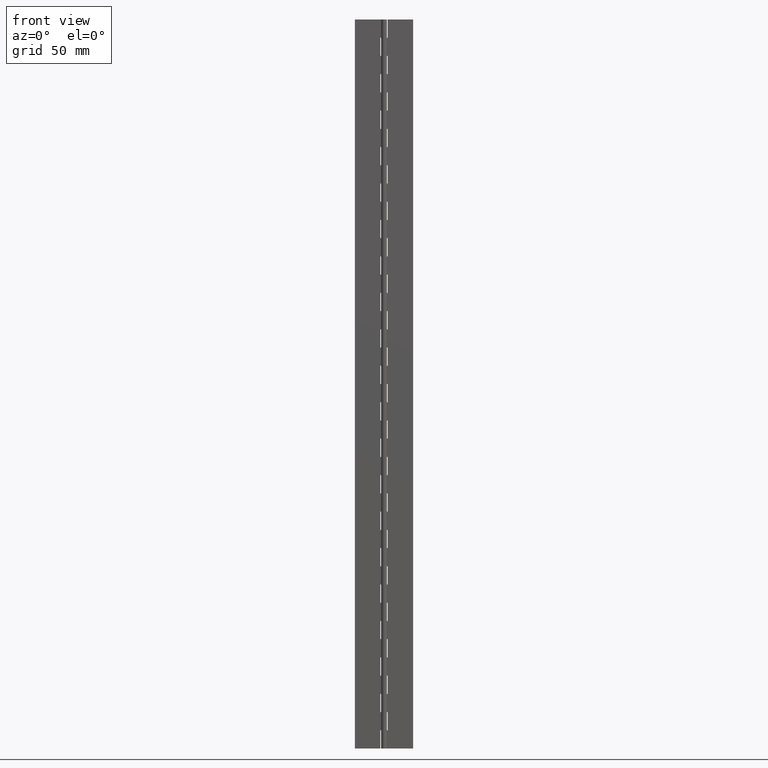
[diagram: clean part render]
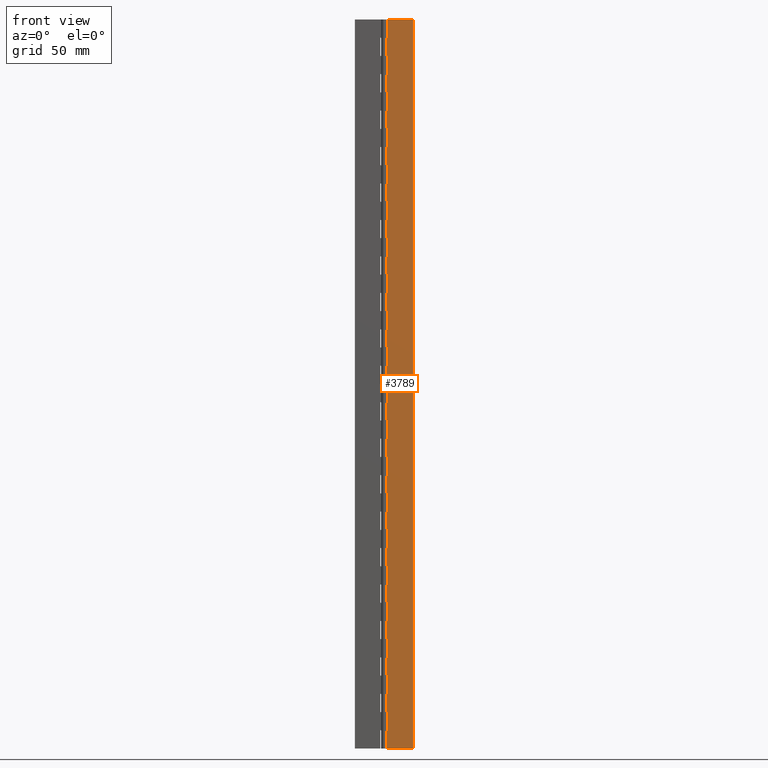
[diagram: same view with one face highlighted and labeled with its STEP entity id]
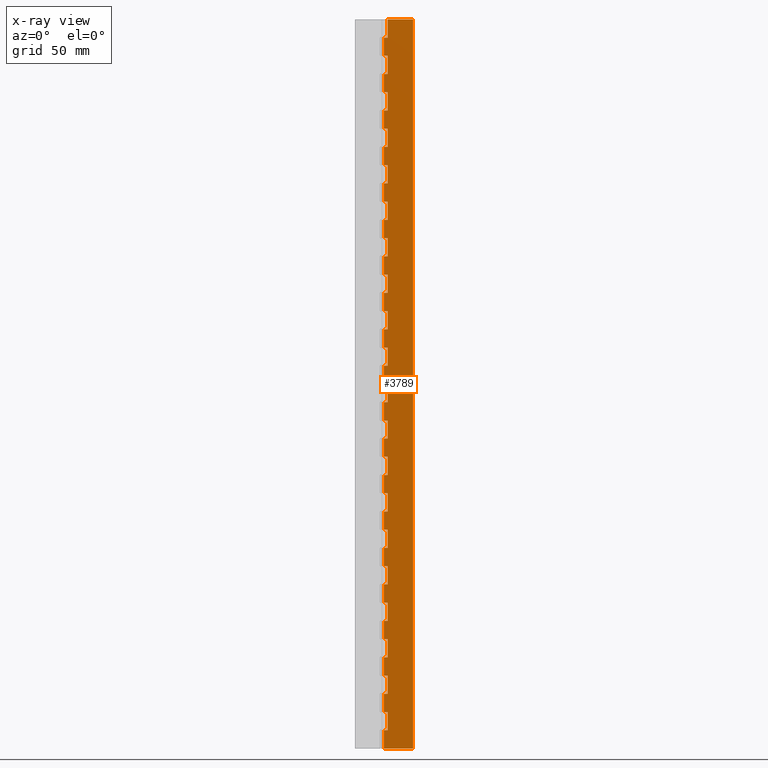
[diagram: x-ray of the same camera — body ghosted, the highlighted face saturated]
A machine part, front view. The second image highlights one B-rep face of the part: STEP entity #3789.
The next image is the same camera in x-ray: the body ghosted, the highlighted face saturated — about 0% of this face is hidden behind the body in this view.
In plain terms, the highlighted face is a freeform B-spline surface patch.
Its self-contained STEP definition (entity closure, byte-faithful):
#79=CARTESIAN_POINT('',(-1.836937E-016,1.0,487.500000000000000));
#80=VERTEX_POINT('',#79);
#100=CARTESIAN_POINT('',(2.500000000000000,1.0,487.500000000000000));
#101=VERTEX_POINT('',#100);
#102=CARTESIAN_POINT('',(2.500000000000000,1.0,487.500000000000000));
#103=CARTESIAN_POINT('',(-1.836937E-016,1.0,487.500000000000000));
#104=QUASI_UNIFORM_CURVE('',1,(#102,#103),.UNSPECIFIED.,.F.,.U.);
#105=EDGE_CURVE('',#101,#80,#104,.T.);
#127=CARTESIAN_POINT('',(2.500000000000000,1.0,500.0));
#128=VERTEX_POINT('',#127);
#142=CARTESIAN_POINT('',(2.500000000000000,1.0,500.0));
#143=CARTESIAN_POINT('',(2.500000000000000,1.0,487.500000000000000));
#144=QUASI_UNIFORM_CURVE('',1,(#142,#143),.UNSPECIFIED.,.F.,.U.);
#145=EDGE_CURVE('',#128,#101,#144,.T.);
#185=CARTESIAN_POINT('',(-1.836910E-016,1.0,462.500000000000000));
#186=VERTEX_POINT('',#185);
#206=CARTESIAN_POINT('',(2.500000000000000,1.0,462.500000000000000));
#207=VERTEX_POINT('',#206);
#208=CARTESIAN_POINT('',(2.500000000000000,1.0,462.500000000000000));
#209=CARTESIAN_POINT('',(-1.836910E-016,1.0,462.500000000000000));
#210=QUASI_UNIFORM_CURVE('',1,(#208,#209),.UNSPECIFIED.,.F.,.U.);
#211=EDGE_CURVE('',#207,#186,#210,.T.);
#263=CARTESIAN_POINT('',(2.500000000000000,1.0,475.0));
#264=VERTEX_POINT('',#263);
#270=CARTESIAN_POINT('',(-1.836937E-016,1.0,475.0));
#271=VERTEX_POINT('',#270);
#272=CARTESIAN_POINT('',(-1.836937E-016,1.0,475.0));
#273=CARTESIAN_POINT('',(2.500000000000000,1.0,475.0));
#274=QUASI_UNIFORM_CURVE('',1,(#272,#273),.UNSPECIFIED.,.F.,.U.);
#275=EDGE_CURVE('',#271,#264,#274,.T.);
#318=CARTESIAN_POINT('',(2.500000000000000,1.0,475.0));
#319=CARTESIAN_POINT('',(2.500000000000000,1.0,462.500000000000000));
#320=QUASI_UNIFORM_CURVE('',1,(#318,#319),.UNSPECIFIED.,.F.,.U.);
#321=EDGE_CURVE('',#264,#207,#320,.T.);
#361=CARTESIAN_POINT('',(-1.836910E-016,1.0,437.500000000000000));
#362=VERTEX_POINT('',#361);
#382=CARTESIAN_POINT('',(2.500000000000000,1.0,437.500000000000000));
#383=VERTEX_POINT('',#382);
#384=CARTESIAN_POINT('',(2.500000000000000,1.0,437.500000000000000));
#385=CARTESIAN_POINT('',(-1.836910E-016,1.0,437.500000000000000));
#386=QUASI_UNIFORM_CURVE('',1,(#384,#385),.UNSPECIFIED.,.F.,.U.);
#387=EDGE_CURVE('',#383,#362,#386,.T.);
#439=CARTESIAN_POINT('',(2.500000000000000,1.0,450.0));
#440=VERTEX_POINT('',#439);
#446=CARTESIAN_POINT('',(-1.836937E-016,1.0,450.0));
#447=VERTEX_POINT('',#446);
#448=CARTESIAN_POINT('',(-1.836937E-016,1.0,450.0));
#449=CARTESIAN_POINT('',(2.500000000000000,1.0,450.0));
#450=QUASI_UNIFORM_CURVE('',1,(#448,#449),.UNSPECIFIED.,.F.,.U.);
#451=EDGE_CURVE('',#447,#440,#450,.T.);
#494=CARTESIAN_POINT('',(2.500000000000000,1.0,450.0));
#495=CARTESIAN_POINT('',(2.500000000000000,1.0,437.500000000000000));
#496=QUASI_UNIFORM_CURVE('',1,(#494,#495),.UNSPECIFIED.,.F.,.U.);
#497=EDGE_CURVE('',#440,#383,#496,.T.);
#537=CARTESIAN_POINT('',(-1.836910E-016,1.0,412.500000000000000));
#538=VERTEX_POINT('',#537);
#558=CARTESIAN_POINT('',(2.500000000000000,1.0,412.500000000000000));
#559=VERTEX_POINT('',#558);
#560=CARTESIAN_POINT('',(2.500000000000000,1.0,412.500000000000000));
#561=CARTESIAN_POINT('',(-1.836910E-016,1.0,412.500000000000000));
#562=QUASI_UNIFORM_CURVE('',1,(#560,#561),.UNSPECIFIED.,.F.,.U.);
#563=EDGE_CURVE('',#559,#538,#562,.T.);
#615=CARTESIAN_POINT('',(2.500000000000000,1.0,425.0));
#616=VERTEX_POINT('',#615);
#622=CARTESIAN_POINT('',(-1.836937E-016,1.0,425.0));
#623=VERTEX_POINT('',#622);
#624=CARTESIAN_POINT('',(-1.836937E-016,1.0,425.0));
#625=CARTESIAN_POINT('',(2.500000000000000,1.0,425.0));
#626=QUASI_UNIFORM_CURVE('',1,(#624,#625),.UNSPECIFIED.,.F.,.U.);
#627=EDGE_CURVE('',#623,#616,#626,.T.);
#670=CARTESIAN_POINT('',(2.500000000000000,1.0,425.0));
#671=CARTESIAN_POINT('',(2.500000000000000,1.0,412.500000000000000));
#672=QUASI_UNIFORM_CURVE('',1,(#670,#671),.UNSPECIFIED.,.F.,.U.);
#673=EDGE_CURVE('',#616,#559,#672,.T.);
#713=CARTESIAN_POINT('',(-1.836910E-016,1.0,387.500000000000000));
#714=VERTEX_POINT('',#713);
#734=CARTESIAN_POINT('',(2.500000000000000,1.0,387.500000000000000));
#735=VERTEX_POINT('',#734);
#736=CARTESIAN_POINT('',(2.500000000000000,1.0,387.500000000000000));
#737=CARTESIAN_POINT('',(-1.836910E-016,1.0,387.500000000000000));
#738=QUASI_UNIFORM_CURVE('',1,(#736,#737),.UNSPECIFIED.,.F.,.U.);
#739=EDGE_CURVE('',#735,#714,#738,.T.);
#791=CARTESIAN_POINT('',(2.500000000000000,1.0,400.0));
#792=VERTEX_POINT('',#791);
#798=CARTESIAN_POINT('',(-1.836937E-016,1.0,400.0));
#799=VERTEX_POINT('',#798);
#800=CARTESIAN_POINT('',(-1.836937E-016,1.0,400.0));
#801=CARTESIAN_POINT('',(2.500000000000000,1.0,400.0));
#802=QUASI_UNIFORM_CURVE('',1,(#800,#801),.UNSPECIFIED.,.F.,.U.);
#803=EDGE_CURVE('',#799,#792,#802,.T.);
#846=CARTESIAN_POINT('',(2.500000000000000,1.0,400.0));
#847=CARTESIAN_POINT('',(2.500000000000000,1.0,387.500000000000000));
#848=QUASI_UNIFORM_CURVE('',1,(#846,#847),.UNSPECIFIED.,.F.,.U.);
#849=EDGE_CURVE('',#792,#735,#848,.T.);
#889=CARTESIAN_POINT('',(-1.836910E-016,1.0,362.500000000000000));
#890=VERTEX_POINT('',#889);
#910=CARTESIAN_POINT('',(2.500000000000000,1.0,362.500000000000000));
#911=VERTEX_POINT('',#910);
#912=CARTESIAN_POINT('',(2.500000000000000,1.0,362.500000000000000));
#913=CARTESIAN_POINT('',(-1.836910E-016,1.0,362.500000000000000));
#914=QUASI_UNIFORM_CURVE('',1,(#912,#913),.UNSPECIFIED.,.F.,.U.);
#915=EDGE_CURVE('',#911,#890,#914,.T.);
#967=CARTESIAN_POINT('',(2.500000000000000,1.0,375.0));
#968=VERTEX_POINT('',#967);
#974=CARTESIAN_POINT('',(-1.836937E-016,1.0,375.0));
#975=VERTEX_POINT('',#974);
#976=CARTESIAN_POINT('',(-1.836937E-016,1.0,375.0));
#977=CARTESIAN_POINT('',(2.500000000000000,1.0,375.0));
#978=QUASI_UNIFORM_CURVE('',1,(#976,#977),.UNSPECIFIED.,.F.,.U.);
#979=EDGE_CURVE('',#975,#968,#978,.T.);
#1022=CARTESIAN_POINT('',(2.500000000000000,1.0,375.0));
#1023=CARTESIAN_POINT('',(2.500000000000000,1.0,362.500000000000000));
#1024=QUASI_UNIFORM_CURVE('',1,(#1022,#1023),.UNSPECIFIED.,.F.,.U.);
#1025=EDGE_CURVE('',#968,#911,#1024,.T.);
#1065=CARTESIAN_POINT('',(-1.836910E-016,1.0,337.500000000000000));
#1066=VERTEX_POINT('',#1065);
#1086=CARTESIAN_POINT('',(2.500000000000000,1.0,337.500000000000000));
#1087=VERTEX_POINT('',#1086);
#1088=CARTESIAN_POINT('',(2.500000000000000,1.0,337.500000000000000));
#1089=CARTESIAN_POINT('',(-1.836910E-016,1.0,337.500000000000000));
#1090=QUASI_UNIFORM_CURVE('',1,(#1088,#1089),.UNSPECIFIED.,.F.,.U.);
#1091=EDGE_CURVE('',#1087,#1066,#1090,.T.);
#1143=CARTESIAN_POINT('',(2.500000000000000,1.0,350.0));
#1144=VERTEX_POINT('',#1143);
#1150=CARTESIAN_POINT('',(-1.836937E-016,1.0,350.0));
#1151=VERTEX_POINT('',#1150);
#1152=CARTESIAN_POINT('',(-1.836937E-016,1.0,350.0));
#1153=CARTESIAN_POINT('',(2.500000000000000,1.0,350.0));
#1154=QUASI_UNIFORM_CURVE('',1,(#1152,#1153),.UNSPECIFIED.,.F.,.U.);
#1155=EDGE_CURVE('',#1151,#1144,#1154,.T.);
#1198=CARTESIAN_POINT('',(2.500000000000000,1.0,350.0));
#1199=CARTESIAN_POINT('',(2.500000000000000,1.0,337.500000000000000));
#1200=QUASI_UNIFORM_CURVE('',1,(#1198,#1199),.UNSPECIFIED.,.F.,.U.);
#1201=EDGE_CURVE('',#1144,#1087,#1200,.T.);
#1241=CARTESIAN_POINT('',(-1.836910E-016,1.0,312.500000000000000));
#1242=VERTEX_POINT('',#1241);
#1262=CARTESIAN_POINT('',(2.500000000000000,1.0,312.500000000000000));
#1263=VERTEX_POINT('',#1262);
#1264=CARTESIAN_POINT('',(2.500000000000000,1.0,312.500000000000000));
#1265=CARTESIAN_POINT('',(-1.836910E-016,1.0,312.500000000000000));
#1266=QUASI_UNIFORM_CURVE('',1,(#1264,#1265),.UNSPECIFIED.,.F.,.U.);
#1267=EDGE_CURVE('',#1263,#1242,#1266,.T.);
#1319=CARTESIAN_POINT('',(2.500000000000000,1.0,325.0));
#1320=VERTEX_POINT('',#1319);
#1326=CARTESIAN_POINT('',(-1.836937E-016,1.0,325.0));
#1327=VERTEX_POINT('',#1326);
#1328=CARTESIAN_POINT('',(-1.836937E-016,1.0,325.0));
#1329=CARTESIAN_POINT('',(2.500000000000000,1.0,325.0));
#1330=QUASI_UNIFORM_CURVE('',1,(#1328,#1329),.UNSPECIFIED.,.F.,.U.);
#1331=EDGE_CURVE('',#1327,#1320,#1330,.T.);
#1374=CARTESIAN_POINT('',(2.500000000000000,1.0,325.0));
#1375=CARTESIAN_POINT('',(2.500000000000000,1.0,312.500000000000000));
#1376=QUASI_UNIFORM_CURVE('',1,(#1374,#1375),.UNSPECIFIED.,.F.,.U.);
#1377=EDGE_CURVE('',#1320,#1263,#1376,.T.);
#1417=CARTESIAN_POINT('',(-1.836910E-016,1.0,287.500000000000000));
#1418=VERTEX_POINT('',#1417);
#1438=CARTESIAN_POINT('',(2.500000000000000,1.0,287.500000000000000));
#1439=VERTEX_POINT('',#1438);
#1440=CARTESIAN_POINT('',(2.500000000000000,1.0,287.500000000000000));
#1441=CARTESIAN_POINT('',(-1.836910E-016,1.0,287.500000000000000));
#1442=QUASI_UNIFORM_CURVE('',1,(#1440,#1441),.UNSPECIFIED.,.F.,.U.);
#1443=EDGE_CURVE('',#1439,#1418,#1442,.T.);
#1495=CARTESIAN_POINT('',(2.500000000000000,1.0,300.0));
#1496=VERTEX_POINT('',#1495);
#1502=CARTESIAN_POINT('',(-1.836937E-016,1.0,300.0));
#1503=VERTEX_POINT('',#1502);
#1504=CARTESIAN_POINT('',(-1.836937E-016,1.0,300.0));
#1505=CARTESIAN_POINT('',(2.500000000000000,1.0,300.0));
#1506=QUASI_UNIFORM_CURVE('',1,(#1504,#1505),.UNSPECIFIED.,.F.,.U.);
#1507=EDGE_CURVE('',#1503,#1496,#1506,.T.);
#1550=CARTESIAN_POINT('',(2.500000000000000,1.0,300.0));
#1551=CARTESIAN_POINT('',(2.500000000000000,1.0,287.500000000000000));
#1552=QUASI_UNIFORM_CURVE('',1,(#1550,#1551),.UNSPECIFIED.,.F.,.U.);
#1553=EDGE_CURVE('',#1496,#1439,#1552,.T.);
#1593=CARTESIAN_POINT('',(-1.836910E-016,1.0,262.500000000000000));
#1594=VERTEX_POINT('',#1593);
#1614=CARTESIAN_POINT('',(2.500000000000000,1.0,262.500000000000000));
#1615=VERTEX_POINT('',#1614);
#1616=CARTESIAN_POINT('',(2.500000000000000,1.0,262.500000000000000));
#1617=CARTESIAN_POINT('',(-1.836910E-016,1.0,262.500000000000000));
#1618=QUASI_UNIFORM_CURVE('',1,(#1616,#1617),.UNSPECIFIED.,.F.,.U.);
#1619=EDGE_CURVE('',#1615,#1594,#1618,.T.);
#1671=CARTESIAN_POINT('',(2.500000000000000,1.0,275.0));
#1672=VERTEX_POINT('',#1671);
#1678=CARTESIAN_POINT('',(-1.836937E-016,1.0,275.0));
#1679=VERTEX_POINT('',#1678);
#1680=CARTESIAN_POINT('',(-1.836937E-016,1.0,275.0));
#1681=CARTESIAN_POINT('',(2.500000000000000,1.0,275.0));
#1682=QUASI_UNIFORM_CURVE('',1,(#1680,#1681),.UNSPECIFIED.,.F.,.U.);
#1683=EDGE_CURVE('',#1679,#1672,#1682,.T.);
#1726=CARTESIAN_POINT('',(2.500000000000000,1.0,275.0));
#1727=CARTESIAN_POINT('',(2.500000000000000,1.0,262.500000000000000));
#1728=QUASI_UNIFORM_CURVE('',1,(#1726,#1727),.UNSPECIFIED.,.F.,.U.);
#1729=EDGE_CURVE('',#1672,#1615,#1728,.T.);
#1769=CARTESIAN_POINT('',(-1.836910E-016,1.0,237.500000000000000));
#1770=VERTEX_POINT('',#1769);
#1790=CARTESIAN_POINT('',(2.500000000000000,1.0,237.500000000000000));
#1791=VERTEX_POINT('',#1790);
#1792=CARTESIAN_POINT('',(2.500000000000000,1.0,237.500000000000000));
#1793=CARTESIAN_POINT('',(-1.836910E-016,1.0,237.500000000000000));
#1794=QUASI_UNIFORM_CURVE('',1,(#1792,#1793),.UNSPECIFIED.,.F.,.U.);
#1795=EDGE_CURVE('',#1791,#1770,#1794,.T.);
#1847=CARTESIAN_POINT('',(2.500000000000000,1.0,250.0));
#1848=VERTEX_POINT('',#1847);
#1854=CARTESIAN_POINT('',(-1.836937E-016,1.0,250.0));
#1855=VERTEX_POINT('',#1854);
#1856=CARTESIAN_POINT('',(-1.836937E-016,1.0,250.0));
#1857=CARTESIAN_POINT('',(2.500000000000000,1.0,250.0));
#1858=QUASI_UNIFORM_CURVE('',1,(#1856,#1857),.UNSPECIFIED.,.F.,.U.);
#1859=EDGE_CURVE('',#1855,#1848,#1858,.T.);
#1902=CARTESIAN_POINT('',(2.500000000000000,1.0,250.0));
#1903=CARTESIAN_POINT('',(2.500000000000000,1.0,237.500000000000000));
#1904=QUASI_UNIFORM_CURVE('',1,(#1902,#1903),.UNSPECIFIED.,.F.,.U.);
#1905=EDGE_CURVE('',#1848,#1791,#1904,.T.);
#1945=CARTESIAN_POINT('',(-1.836910E-016,1.0,212.500000000000000));
#1946=VERTEX_POINT('',#1945);
#1966=CARTESIAN_POINT('',(2.500000000000000,1.0,212.500000000000000));
#1967=VERTEX_POINT('',#1966);
#1968=CARTESIAN_POINT('',(2.500000000000000,1.0,212.500000000000000));
#1969=CARTESIAN_POINT('',(-1.836910E-016,1.0,212.500000000000000));
#1970=QUASI_UNIFORM_CURVE('',1,(#1968,#1969),.UNSPECIFIED.,.F.,.U.);
#1971=EDGE_CURVE('',#1967,#1946,#1970,.T.);
#2023=CARTESIAN_POINT('',(2.500000000000000,1.0,225.0));
#2024=VERTEX_POINT('',#2023);
#2030=CARTESIAN_POINT('',(-1.836937E-016,1.0,225.0));
#2031=VERTEX_POINT('',#2030);
#2032=CARTESIAN_POINT('',(-1.836937E-016,1.0,225.0));
#2033=CARTESIAN_POINT('',(2.500000000000000,1.0,225.0));
#2034=QUASI_UNIFORM_CURVE('',1,(#2032,#2033),.UNSPECIFIED.,.F.,.U.);
#2035=EDGE_CURVE('',#2031,#2024,#2034,.T.);
#2078=CARTESIAN_POINT('',(2.500000000000000,1.0,225.0));
#2079=CARTESIAN_POINT('',(2.500000000000000,1.0,212.500000000000000));
#2080=QUASI_UNIFORM_CURVE('',1,(#2078,#2079),.UNSPECIFIED.,.F.,.U.);
#2081=EDGE_CURVE('',#2024,#1967,#2080,.T.);
#2121=CARTESIAN_POINT('',(-1.836910E-016,1.0,187.500000000000000));
#2122=VERTEX_POINT('',#2121);
#2142=CARTESIAN_POINT('',(2.500000000000000,1.0,187.500000000000000));
#2143=VERTEX_POINT('',#2142);
#2144=CARTESIAN_POINT('',(2.500000000000000,1.0,187.500000000000000));
#2145=CARTESIAN_POINT('',(-1.836910E-016,1.0,187.500000000000000));
#2146=QUASI_UNIFORM_CURVE('',1,(#2144,#2145),.UNSPECIFIED.,.F.,.U.);
#2147=EDGE_CURVE('',#2143,#2122,#2146,.T.);
#2199=CARTESIAN_POINT('',(2.500000000000000,1.0,200.0));
#2200=VERTEX_POINT('',#2199);
#2206=CARTESIAN_POINT('',(-1.836937E-016,1.0,200.0));
#2207=VERTEX_POINT('',#2206);
#2208=CARTESIAN_POINT('',(-1.836937E-016,1.0,200.0));
#2209=CARTESIAN_POINT('',(2.500000000000000,1.0,200.0));
#2210=QUASI_UNIFORM_CURVE('',1,(#2208,#2209),.UNSPECIFIED.,.F.,.U.);
#2211=EDGE_CURVE('',#2207,#2200,#2210,.T.);
#2254=CARTESIAN_POINT('',(2.500000000000000,1.0,200.0));
#2255=CARTESIAN_POINT('',(2.500000000000000,1.0,187.500000000000000));
#2256=QUASI_UNIFORM_CURVE('',1,(#2254,#2255),.UNSPECIFIED.,.F.,.U.);
#2257=EDGE_CURVE('',#2200,#2143,#2256,.T.);
#2297=CARTESIAN_POINT('',(-1.836910E-016,1.0,162.500000000000000));
#2298=VERTEX_POINT('',#2297);
#2318=CARTESIAN_POINT('',(2.500000000000000,1.0,162.500000000000000));
#2319=VERTEX_POINT('',#2318);
#2320=CARTESIAN_POINT('',(2.500000000000000,1.0,162.500000000000000));
#2321=CARTESIAN_POINT('',(-1.836910E-016,1.0,162.500000000000000));
#2322=QUASI_UNIFORM_CURVE('',1,(#2320,#2321),.UNSPECIFIED.,.F.,.U.);
#2323=EDGE_CURVE('',#2319,#2298,#2322,.T.);
#2375=CARTESIAN_POINT('',(2.500000000000000,1.0,175.0));
#2376=VERTEX_POINT('',#2375);
#2382=CARTESIAN_POINT('',(-1.836937E-016,1.0,175.0));
#2383=VERTEX_POINT('',#2382);
#2384=CARTESIAN_POINT('',(-1.836937E-016,1.0,175.0));
#2385=CARTESIAN_POINT('',(2.500000000000000,1.0,175.0));
#2386=QUASI_UNIFORM_CURVE('',1,(#2384,#2385),.UNSPECIFIED.,.F.,.U.);
#2387=EDGE_CURVE('',#2383,#2376,#2386,.T.);
#2430=CARTESIAN_POINT('',(2.500000000000000,1.0,175.0));
#2431=CARTESIAN_POINT('',(2.500000000000000,1.0,162.500000000000000));
#2432=QUASI_UNIFORM_CURVE('',1,(#2430,#2431),.UNSPECIFIED.,.F.,.U.);
#2433=EDGE_CURVE('',#2376,#2319,#2432,.T.);
#2473=CARTESIAN_POINT('',(-1.836910E-016,1.0,137.500000000000000));
#2474=VERTEX_POINT('',#2473);
#2494=CARTESIAN_POINT('',(2.500000000000000,1.0,137.500000000000000));
#2495=VERTEX_POINT('',#2494);
#2496=CARTESIAN_POINT('',(2.500000000000000,1.0,137.500000000000000));
#2497=CARTESIAN_POINT('',(-1.836910E-016,1.0,137.500000000000000));
#2498=QUASI_UNIFORM_CURVE('',1,(#2496,#2497),.UNSPECIFIED.,.F.,.U.);
#2499=EDGE_CURVE('',#2495,#2474,#2498,.T.);
#2551=CARTESIAN_POINT('',(2.500000000000000,1.0,150.0));
#2552=VERTEX_POINT('',#2551);
#2558=CARTESIAN_POINT('',(-1.836937E-016,1.0,150.0));
#2559=VERTEX_POINT('',#2558);
#2560=CARTESIAN_POINT('',(-1.836937E-016,1.0,150.0));
#2561=CARTESIAN_POINT('',(2.500000000000000,1.0,150.0));
#2562=QUASI_UNIFORM_CURVE('',1,(#2560,#2561),.UNSPECIFIED.,.F.,.U.);
#2563=EDGE_CURVE('',#2559,#2552,#2562,.T.);
#2606=CARTESIAN_POINT('',(2.500000000000000,1.0,150.0));
#2607=CARTESIAN_POINT('',(2.500000000000000,1.0,137.500000000000000));
#2608=QUASI_UNIFORM_CURVE('',1,(#2606,#2607),.UNSPECIFIED.,.F.,.U.);
#2609=EDGE_CURVE('',#2552,#2495,#2608,.T.);
#2649=CARTESIAN_POINT('',(-1.836910E-016,1.0,112.500000000000000));
#2650=VERTEX_POINT('',#2649);
#2670=CARTESIAN_POINT('',(2.500000000000000,1.0,112.500000000000000));
#2671=VERTEX_POINT('',#2670);
#2672=CARTESIAN_POINT('',(2.500000000000000,1.0,112.500000000000000));
#2673=CARTESIAN_POINT('',(-1.836910E-016,1.0,112.500000000000000));
#2674=QUASI_UNIFORM_CURVE('',1,(#2672,#2673),.UNSPECIFIED.,.F.,.U.);
#2675=EDGE_CURVE('',#2671,#2650,#2674,.T.);
#2727=CARTESIAN_POINT('',(2.500000000000000,1.0,125.0));
#2728=VERTEX_POINT('',#2727);
#2734=CARTESIAN_POINT('',(-1.836937E-016,1.0,125.0));
#2735=VERTEX_POINT('',#2734);
#2736=CARTESIAN_POINT('',(-1.836937E-016,1.0,125.0));
#2737=CARTESIAN_POINT('',(2.500000000000000,1.0,125.0));
#2738=QUASI_UNIFORM_CURVE('',1,(#2736,#2737),.UNSPECIFIED.,.F.,.U.);
#2739=EDGE_CURVE('',#2735,#2728,#2738,.T.);
#2782=CARTESIAN_POINT('',(2.500000000000000,1.0,125.0));
#2783=CARTESIAN_POINT('',(2.500000000000000,1.0,112.500000000000000));
#2784=QUASI_UNIFORM_CURVE('',1,(#2782,#2783),.UNSPECIFIED.,.F.,.U.);
#2785=EDGE_CURVE('',#2728,#2671,#2784,.T.);
#2825=CARTESIAN_POINT('',(-1.836910E-016,1.0,87.500000000000000));
#2826=VERTEX_POINT('',#2825);
#2846=CARTESIAN_POINT('',(2.500000000000000,1.0,87.500000000000000));
#2847=VERTEX_POINT('',#2846);
#2848=CARTESIAN_POINT('',(2.500000000000000,1.0,87.500000000000000));
#2849=CARTESIAN_POINT('',(-1.836910E-016,1.0,87.500000000000000));
#2850=QUASI_UNIFORM_CURVE('',1,(#2848,#2849),.UNSPECIFIED.,.F.,.U.);
#2851=EDGE_CURVE('',#2847,#2826,#2850,.T.);
#2903=CARTESIAN_POINT('',(2.500000000000000,1.0,100.0));
#2904=VERTEX_POINT('',#2903);
#2910=CARTESIAN_POINT('',(-1.836937E-016,1.0,100.0));
#2911=VERTEX_POINT('',#2910);
#2912=CARTESIAN_POINT('',(-1.836937E-016,1.0,100.0));
#2913=CARTESIAN_POINT('',(2.500000000000000,1.0,100.0));
#2914=QUASI_UNIFORM_CURVE('',1,(#2912,#2913),.UNSPECIFIED.,.F.,.U.);
#2915=EDGE_CURVE('',#2911,#2904,#2914,.T.);
#2958=CARTESIAN_POINT('',(2.500000000000000,1.0,100.0));
#2959=CARTESIAN_POINT('',(2.500000000000000,1.0,87.500000000000000));
#2960=QUASI_UNIFORM_CURVE('',1,(#2958,#2959),.UNSPECIFIED.,.F.,.U.);
#2961=EDGE_CURVE('',#2904,#2847,#2960,.T.);
#3001=CARTESIAN_POINT('',(-1.836910E-016,1.0,62.500000000000000));
#3002=VERTEX_POINT('',#3001);
#3022=CARTESIAN_POINT('',(2.500000000000000,1.0,62.500000000000000));
#3023=VERTEX_POINT('',#3022);
#3024=CARTESIAN_POINT('',(2.500000000000000,1.0,62.500000000000000));
#3025=CARTESIAN_POINT('',(-1.836910E-016,1.0,62.500000000000000));
#3026=QUASI_UNIFORM_CURVE('',1,(#3024,#3025),.UNSPECIFIED.,.F.,.U.);
#3027=EDGE_CURVE('',#3023,#3002,#3026,.T.);
#3079=CARTESIAN_POINT('',(2.500000000000000,1.0,75.0));
#3080=VERTEX_POINT('',#3079);
#3086=CARTESIAN_POINT('',(-1.836937E-016,1.0,75.0));
#3087=VERTEX_POINT('',#3086);
#3088=CARTESIAN_POINT('',(-1.836937E-016,1.0,75.0));
#3089=CARTESIAN_POINT('',(2.500000000000000,1.0,75.0));
#3090=QUASI_UNIFORM_CURVE('',1,(#3088,#3089),.UNSPECIFIED.,.F.,.U.);
#3091=EDGE_CURVE('',#3087,#3080,#3090,.T.);
#3134=CARTESIAN_POINT('',(2.500000000000000,1.0,75.0));
#3135=CARTESIAN_POINT('',(2.500000000000000,1.0,62.500000000000000));
#3136=QUASI_UNIFORM_CURVE('',1,(#3134,#3135),.UNSPECIFIED.,.F.,.U.);
#3137=EDGE_CURVE('',#3080,#3023,#3136,.T.);
#3177=CARTESIAN_POINT('',(-1.836910E-016,1.0,37.500000000000000));
#3178=VERTEX_POINT('',#3177);
#3198=CARTESIAN_POINT('',(2.500000000000000,1.0,37.500000000000000));
#3199=VERTEX_POINT('',#3198);
#3200=CARTESIAN_POINT('',(2.500000000000000,1.0,37.500000000000000));
#3201=CARTESIAN_POINT('',(-1.836910E-016,1.0,37.500000000000000));
#3202=QUASI_UNIFORM_CURVE('',1,(#3200,#3201),.UNSPECIFIED.,.F.,.U.);
#3203=EDGE_CURVE('',#3199,#3178,#3202,.T.);
#3255=CARTESIAN_POINT('',(2.500000000000000,1.0,50.0));
#3256=VERTEX_POINT('',#3255);
#3262=CARTESIAN_POINT('',(-1.836937E-016,1.0,50.0));
#3263=VERTEX_POINT('',#3262);
#3264=CARTESIAN_POINT('',(-1.836937E-016,1.0,50.0));
#3265=CARTESIAN_POINT('',(2.500000000000000,1.0,50.0));
#3266=QUASI_UNIFORM_CURVE('',1,(#3264,#3265),.UNSPECIFIED.,.F.,.U.);
#3267=EDGE_CURVE('',#3263,#3256,#3266,.T.);
#3310=CARTESIAN_POINT('',(2.500000000000000,1.0,50.0));
#3311=CARTESIAN_POINT('',(2.500000000000000,1.0,37.500000000000000));
#3312=QUASI_UNIFORM_CURVE('',1,(#3310,#3311),.UNSPECIFIED.,.F.,.U.);
#3313=EDGE_CURVE('',#3256,#3199,#3312,.T.);
#3353=CARTESIAN_POINT('',(-1.836910E-016,1.0,12.500000000000000));
#3354=VERTEX_POINT('',#3353);
#3374=CARTESIAN_POINT('',(2.500000000000000,1.0,12.500000000000000));
#3375=VERTEX_POINT('',#3374);
#3376=CARTESIAN_POINT('',(2.500000000000000,1.0,12.500000000000000));
#3377=CARTESIAN_POINT('',(-1.836910E-016,1.0,12.500000000000000));
#3378=QUASI_UNIFORM_CURVE('',1,(#3376,#3377),.UNSPECIFIED.,.F.,.U.);
#3379=EDGE_CURVE('',#3375,#3354,#3378,.T.);
#3431=CARTESIAN_POINT('',(2.500000000000000,1.0,25.0));
#3432=VERTEX_POINT('',#3431);
#3438=CARTESIAN_POINT('',(-1.836937E-016,1.0,25.0));
#3439=VERTEX_POINT('',#3438);
#3440=CARTESIAN_POINT('',(-1.836937E-016,1.0,25.0));
#3441=CARTESIAN_POINT('',(2.500000000000000,1.0,25.0));
#3442=QUASI_UNIFORM_CURVE('',1,(#3440,#3441),.UNSPECIFIED.,.F.,.U.);
#3443=EDGE_CURVE('',#3439,#3432,#3442,.T.);
#3486=CARTESIAN_POINT('',(2.500000000000000,1.0,25.0));
#3487=CARTESIAN_POINT('',(2.500000000000000,1.0,12.500000000000000));
#3488=QUASI_UNIFORM_CURVE('',1,(#3486,#3487),.UNSPECIFIED.,.F.,.U.);
#3489=EDGE_CURVE('',#3432,#3375,#3488,.T.);
#3508=CARTESIAN_POINT('',(20.0,1.0,0.0));
#3509=VERTEX_POINT('',#3508);
#3515=CARTESIAN_POINT('',(-1.836910E-016,1.0,0.0));
#3516=VERTEX_POINT('',#3515);
#3517=CARTESIAN_POINT('',(-1.836910E-016,1.0,0.0));
#3518=CARTESIAN_POINT('',(20.0,1.0,0.0));
#3519=QUASI_UNIFORM_CURVE('',1,(#3517,#3518),.UNSPECIFIED.,.F.,.U.);
#3520=EDGE_CURVE('',#3516,#3509,#3519,.T.);
#3585=CARTESIAN_POINT('',(20.0,1.0,500.0));
#3586=VERTEX_POINT('',#3585);
#3587=CARTESIAN_POINT('',(2.500000000000000,1.0,500.0));
#3588=CARTESIAN_POINT('',(20.0,1.0,500.0));
#3589=QUASI_UNIFORM_CURVE('',1,(#3587,#3588),.UNSPECIFIED.,.F.,.U.);
#3590=EDGE_CURVE('',#128,#3586,#3589,.T.);
#3612=CARTESIAN_POINT('',(20.0,1.0,500.0));
#3613=CARTESIAN_POINT('',(20.0,1.0,0.0));
#3614=QUASI_UNIFORM_CURVE('',1,(#3612,#3613),.UNSPECIFIED.,.F.,.U.);
#3615=EDGE_CURVE('',#3586,#3509,#3614,.T.);
#3620=CARTESIAN_POINT('',(-0.998999961236120,1.0,-24.974999030902989));
#3621=CARTESIAN_POINT('',(-0.998999961236120,1.0,524.975012441948140));
#3622=CARTESIAN_POINT('',(20.999000497677919,1.0,-24.974999030902989));
#3623=CARTESIAN_POINT('',(20.999000497677919,1.0,524.975012441948140));
#3624=B_SPLINE_SURFACE_WITH_KNOTS('',1,1,((#3620,#3622),(#3621,#3623)),.UNSPECIFIED.,.F.,.F.,.U.,(2,2),(2,2),(0.0,549.950011472851090),(0.0,21.998000458914039),.UNSPECIFIED.);
#3625=ORIENTED_EDGE('',*,*,#3590,.F.);
#3626=ORIENTED_EDGE('',*,*,#145,.T.);
#3627=ORIENTED_EDGE('',*,*,#105,.T.);
#3628=CARTESIAN_POINT('',(-1.836937E-016,1.0,487.500000000000000));
#3629=CARTESIAN_POINT('',(-1.836937E-016,1.0,475.0));
#3630=QUASI_UNIFORM_CURVE('',1,(#3628,#3629),.UNSPECIFIED.,.F.,.U.);
#3631=EDGE_CURVE('',#80,#271,#3630,.T.);
#3632=ORIENTED_EDGE('',*,*,#3631,.T.);
#3633=ORIENTED_EDGE('',*,*,#275,.T.);
#3634=ORIENTED_EDGE('',*,*,#321,.T.);
#3635=ORIENTED_EDGE('',*,*,#211,.T.);
#3636=CARTESIAN_POINT('',(-1.836910E-016,1.0,462.500000000000000));
#3637=CARTESIAN_POINT('',(-1.836937E-016,1.0,450.0));
#3638=QUASI_UNIFORM_CURVE('',1,(#3636,#3637),.UNSPECIFIED.,.F.,.U.);
#3639=EDGE_CURVE('',#186,#447,#3638,.T.);
#3640=ORIENTED_EDGE('',*,*,#3639,.T.);
#3641=ORIENTED_EDGE('',*,*,#451,.T.);
#3642=ORIENTED_EDGE('',*,*,#497,.T.);
#3643=ORIENTED_EDGE('',*,*,#387,.T.);
#3644=CARTESIAN_POINT('',(-1.836910E-016,1.0,437.500000000000000));
#3645=CARTESIAN_POINT('',(-1.836937E-016,1.0,425.0));
#3646=QUASI_UNIFORM_CURVE('',1,(#3644,#3645),.UNSPECIFIED.,.F.,.U.);
#3647=EDGE_CURVE('',#362,#623,#3646,.T.);
#3648=ORIENTED_EDGE('',*,*,#3647,.T.);
#3649=ORIENTED_EDGE('',*,*,#627,.T.);
#3650=ORIENTED_EDGE('',*,*,#673,.T.);
#3651=ORIENTED_EDGE('',*,*,#563,.T.);
#3652=CARTESIAN_POINT('',(-1.836910E-016,1.0,412.500000000000000));
#3653=CARTESIAN_POINT('',(-1.836937E-016,1.0,400.0));
#3654=QUASI_UNIFORM_CURVE('',1,(#3652,#3653),.UNSPECIFIED.,.F.,.U.);
#3655=EDGE_CURVE('',#538,#799,#3654,.T.);
#3656=ORIENTED_EDGE('',*,*,#3655,.T.);
#3657=ORIENTED_EDGE('',*,*,#803,.T.);
#3658=ORIENTED_EDGE('',*,*,#849,.T.);
#3659=ORIENTED_EDGE('',*,*,#739,.T.);
#3660=CARTESIAN_POINT('',(-1.836910E-016,1.0,387.500000000000000));
#3661=CARTESIAN_POINT('',(-1.836937E-016,1.0,375.0));
#3662=QUASI_UNIFORM_CURVE('',1,(#3660,#3661),.UNSPECIFIED.,.F.,.U.);
#3663=EDGE_CURVE('',#714,#975,#3662,.T.);
#3664=ORIENTED_EDGE('',*,*,#3663,.T.);
#3665=ORIENTED_EDGE('',*,*,#979,.T.);
#3666=ORIENTED_EDGE('',*,*,#1025,.T.);
#3667=ORIENTED_EDGE('',*,*,#915,.T.);
#3668=CARTESIAN_POINT('',(-1.836910E-016,1.0,362.500000000000000));
#3669=CARTESIAN_POINT('',(-1.836937E-016,1.0,350.0));
#3670=QUASI_UNIFORM_CURVE('',1,(#3668,#3669),.UNSPECIFIED.,.F.,.U.);
#3671=EDGE_CURVE('',#890,#1151,#3670,.T.);
#3672=ORIENTED_EDGE('',*,*,#3671,.T.);
#3673=ORIENTED_EDGE('',*,*,#1155,.T.);
#3674=ORIENTED_EDGE('',*,*,#1201,.T.);
#3675=ORIENTED_EDGE('',*,*,#1091,.T.);
#3676=CARTESIAN_POINT('',(-1.836910E-016,1.0,337.500000000000000));
#3677=CARTESIAN_POINT('',(-1.836937E-016,1.0,325.0));
#3678=QUASI_UNIFORM_CURVE('',1,(#3676,#3677),.UNSPECIFIED.,.F.,.U.);
#3679=EDGE_CURVE('',#1066,#1327,#3678,.T.);
#3680=ORIENTED_EDGE('',*,*,#3679,.T.);
#3681=ORIENTED_EDGE('',*,*,#1331,.T.);
#3682=ORIENTED_EDGE('',*,*,#1377,.T.);
#3683=ORIENTED_EDGE('',*,*,#1267,.T.);
#3684=CARTESIAN_POINT('',(-1.836910E-016,1.0,312.500000000000000));
#3685=CARTESIAN_POINT('',(-1.836937E-016,1.0,300.0));
#3686=QUASI_UNIFORM_CURVE('',1,(#3684,#3685),.UNSPECIFIED.,.F.,.U.);
#3687=EDGE_CURVE('',#1242,#1503,#3686,.T.);
#3688=ORIENTED_EDGE('',*,*,#3687,.T.);
#3689=ORIENTED_EDGE('',*,*,#1507,.T.);
#3690=ORIENTED_EDGE('',*,*,#1553,.T.);
#3691=ORIENTED_EDGE('',*,*,#1443,.T.);
#3692=CARTESIAN_POINT('',(-1.836910E-016,1.0,287.500000000000000));
#3693=CARTESIAN_POINT('',(-1.836937E-016,1.0,275.0));
#3694=QUASI_UNIFORM_CURVE('',1,(#3692,#3693),.UNSPECIFIED.,.F.,.U.);
#3695=EDGE_CURVE('',#1418,#1679,#3694,.T.);
#3696=ORIENTED_EDGE('',*,*,#3695,.T.);
#3697=ORIENTED_EDGE('',*,*,#1683,.T.);
#3698=ORIENTED_EDGE('',*,*,#1729,.T.);
#3699=ORIENTED_EDGE('',*,*,#1619,.T.);
#3700=CARTESIAN_POINT('',(-1.836910E-016,1.0,262.500000000000000));
#3701=CARTESIAN_POINT('',(-1.836937E-016,1.0,250.0));
#3702=QUASI_UNIFORM_CURVE('',1,(#3700,#3701),.UNSPECIFIED.,.F.,.U.);
#3703=EDGE_CURVE('',#1594,#1855,#3702,.T.);
#3704=ORIENTED_EDGE('',*,*,#3703,.T.);
#3705=ORIENTED_EDGE('',*,*,#1859,.T.);
#3706=ORIENTED_EDGE('',*,*,#1905,.T.);
#3707=ORIENTED_EDGE('',*,*,#1795,.T.);
#3708=CARTESIAN_POINT('',(-1.836910E-016,1.0,237.500000000000000));
#3709=CARTESIAN_POINT('',(-1.836937E-016,1.0,225.0));
#3710=QUASI_UNIFORM_CURVE('',1,(#3708,#3709),.UNSPECIFIED.,.F.,.U.);
#3711=EDGE_CURVE('',#1770,#2031,#3710,.T.);
#3712=ORIENTED_EDGE('',*,*,#3711,.T.);
#3713=ORIENTED_EDGE('',*,*,#2035,.T.);
#3714=ORIENTED_EDGE('',*,*,#2081,.T.);
#3715=ORIENTED_EDGE('',*,*,#1971,.T.);
#3716=CARTESIAN_POINT('',(-1.836910E-016,1.0,212.500000000000000));
#3717=CARTESIAN_POINT('',(-1.836937E-016,1.0,200.0));
#3718=QUASI_UNIFORM_CURVE('',1,(#3716,#3717),.UNSPECIFIED.,.F.,.U.);
#3719=EDGE_CURVE('',#1946,#2207,#3718,.T.);
#3720=ORIENTED_EDGE('',*,*,#3719,.T.);
#3721=ORIENTED_EDGE('',*,*,#2211,.T.);
#3722=ORIENTED_EDGE('',*,*,#2257,.T.);
#3723=ORIENTED_EDGE('',*,*,#2147,.T.);
#3724=CARTESIAN_POINT('',(-1.836910E-016,1.0,187.500000000000000));
#3725=CARTESIAN_POINT('',(-1.836937E-016,1.0,175.0));
#3726=QUASI_UNIFORM_CURVE('',1,(#3724,#3725),.UNSPECIFIED.,.F.,.U.);
#3727=EDGE_CURVE('',#2122,#2383,#3726,.T.);
#3728=ORIENTED_EDGE('',*,*,#3727,.T.);
#3729=ORIENTED_EDGE('',*,*,#2387,.T.);
#3730=ORIENTED_EDGE('',*,*,#2433,.T.);
#3731=ORIENTED_EDGE('',*,*,#2323,.T.);
#3732=CARTESIAN_POINT('',(-1.836910E-016,1.0,162.500000000000000));
#3733=CARTESIAN_POINT('',(-1.836937E-016,1.0,150.0));
#3734=QUASI_UNIFORM_CURVE('',1,(#3732,#3733),.UNSPECIFIED.,.F.,.U.);
#3735=EDGE_CURVE('',#2298,#2559,#3734,.T.);
#3736=ORIENTED_EDGE('',*,*,#3735,.T.);
#3737=ORIENTED_EDGE('',*,*,#2563,.T.);
#3738=ORIENTED_EDGE('',*,*,#2609,.T.);
#3739=ORIENTED_EDGE('',*,*,#2499,.T.);
#3740=CARTESIAN_POINT('',(-1.836910E-016,1.0,137.500000000000000));
#3741=CARTESIAN_POINT('',(-1.836937E-016,1.0,125.0));
#3742=QUASI_UNIFORM_CURVE('',1,(#3740,#3741),.UNSPECIFIED.,.F.,.U.);
#3743=EDGE_CURVE('',#2474,#2735,#3742,.T.);
#3744=ORIENTED_EDGE('',*,*,#3743,.T.);
#3745=ORIENTED_EDGE('',*,*,#2739,.T.);
#3746=ORIENTED_EDGE('',*,*,#2785,.T.);
#3747=ORIENTED_EDGE('',*,*,#2675,.T.);
#3748=CARTESIAN_POINT('',(-1.836910E-016,1.0,112.500000000000000));
#3749=CARTESIAN_POINT('',(-1.836937E-016,1.0,100.0));
#3750=QUASI_UNIFORM_CURVE('',1,(#3748,#3749),.UNSPECIFIED.,.F.,.U.);
#3751=EDGE_CURVE('',#2650,#2911,#3750,.T.);
#3752=ORIENTED_EDGE('',*,*,#3751,.T.);
#3753=ORIENTED_EDGE('',*,*,#2915,.T.);
#3754=ORIENTED_EDGE('',*,*,#2961,.T.);
#3755=ORIENTED_EDGE('',*,*,#2851,.T.);
#3756=CARTESIAN_POINT('',(-1.836910E-016,1.0,87.500000000000000));
#3757=CARTESIAN_POINT('',(-1.836937E-016,1.0,75.0));
#3758=QUASI_UNIFORM_CURVE('',1,(#3756,#3757),.UNSPECIFIED.,.F.,.U.);
#3759=EDGE_CURVE('',#2826,#3087,#3758,.T.);
#3760=ORIENTED_EDGE('',*,*,#3759,.T.);
#3761=ORIENTED_EDGE('',*,*,#3091,.T.);
#3762=ORIENTED_EDGE('',*,*,#3137,.T.);
#3763=ORIENTED_EDGE('',*,*,#3027,.T.);
#3764=CARTESIAN_POINT('',(-1.836910E-016,1.0,62.500000000000000));
#3765=CARTESIAN_POINT('',(-1.836937E-016,1.0,50.0));
#3766=QUASI_UNIFORM_CURVE('',1,(#3764,#3765),.UNSPECIFIED.,.F.,.U.);
#3767=EDGE_CURVE('',#3002,#3263,#3766,.T.);
#3768=ORIENTED_EDGE('',*,*,#3767,.T.);
#3769=ORIENTED_EDGE('',*,*,#3267,.T.);
#3770=ORIENTED_EDGE('',*,*,#3313,.T.);
#3771=ORIENTED_EDGE('',*,*,#3203,.T.);
#3772=CARTESIAN_POINT('',(-1.836910E-016,1.0,37.500000000000000));
#3773=CARTESIAN_POINT('',(-1.836937E-016,1.0,25.0));
#3774=QUASI_UNIFORM_CURVE('',1,(#3772,#3773),.UNSPECIFIED.,.F.,.U.);
#3775=EDGE_CURVE('',#3178,#3439,#3774,.T.);
#3776=ORIENTED_EDGE('',*,*,#3775,.T.);
#3777=ORIENTED_EDGE('',*,*,#3443,.T.);
#3778=ORIENTED_EDGE('',*,*,#3489,.T.);
#3779=ORIENTED_EDGE('',*,*,#3379,.T.);
#3780=CARTESIAN_POINT('',(-1.836910E-016,1.0,12.500000000000000));
#3781=CARTESIAN_POINT('',(-1.836910E-016,1.0,0.0));
#3782=QUASI_UNIFORM_CURVE('',1,(#3780,#3781),.UNSPECIFIED.,.F.,.U.);
#3783=EDGE_CURVE('',#3354,#3516,#3782,.T.);
#3784=ORIENTED_EDGE('',*,*,#3783,.T.);
#3785=ORIENTED_EDGE('',*,*,#3520,.T.);
#3786=ORIENTED_EDGE('',*,*,#3615,.F.);
#3787=EDGE_LOOP('',(#3625,#3626,#3627,#3632,#3633,#3634,#3635,#3640,#3641,#3642,#3643,#3648,#3649,#3650,#3651,#3656,#3657,#3658,#3659,#3664,#3665,#3666,#3667,#3672,#3673,#3674,#3675,#3680,#3681,#3682,#3683,#3688,#3689,#3690,#3691,#3696,#3697,#3698,#3699,#3704,#3705,#3706,#3707,#3712,#3713,#3714,#3715,#3720,#3721,#3722,#3723,#3728,#3729,#3730,#3731,#3736,#3737,#3738,#3739,#3744,#3745,#3746,#3747,#3752,#3753,#3754,#3755,#3760,#3761,#3762,#3763,#3768,#3769,#3770,#3771,#3776,#3777,#3778,#3779,#3784,#3785,#3786));
#3788=FACE_OUTER_BOUND('',#3787,.T.);
#3789=ADVANCED_FACE('',(#3788),#3624,.F.);